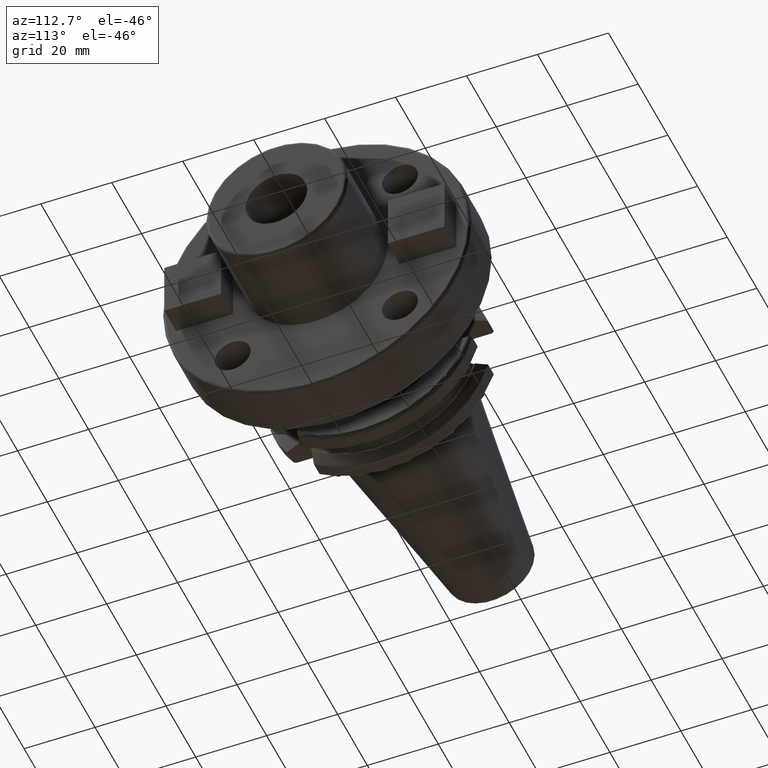
[diagram: clean part render]
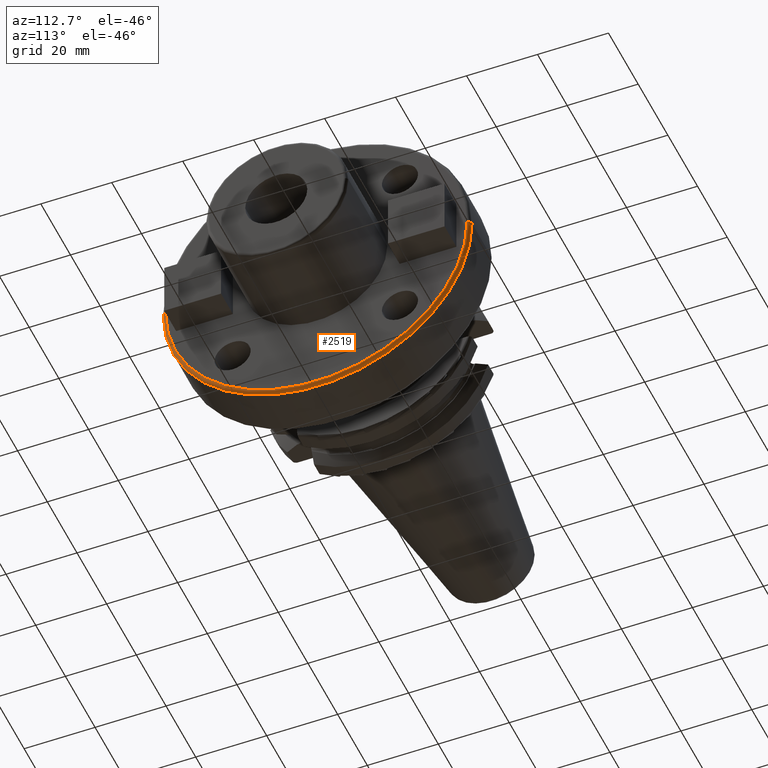
[diagram: same view with one face highlighted and labeled with its STEP entity id]
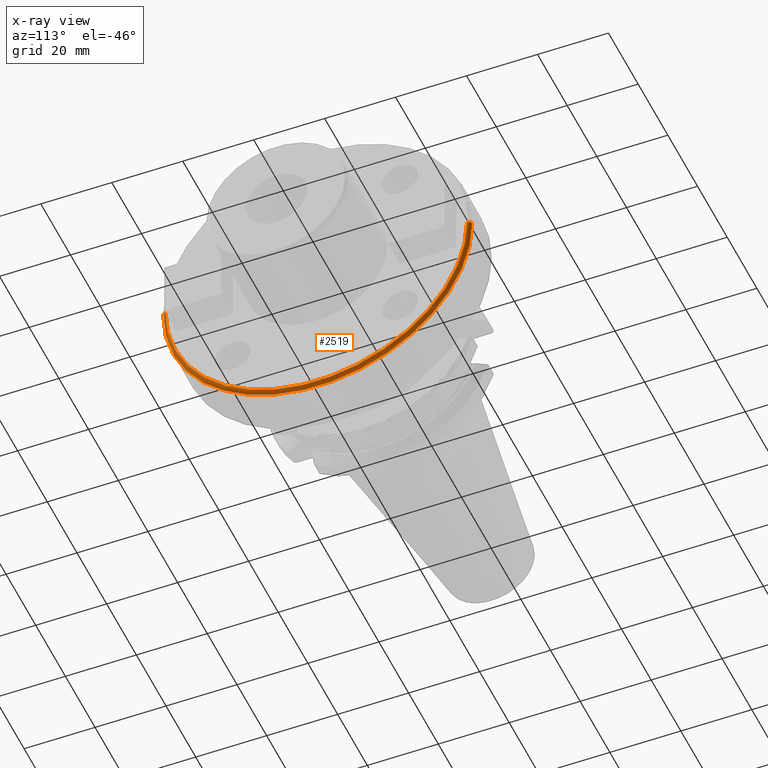
[diagram: x-ray of the same camera — body ghosted, the highlighted face saturated]
A machine part, auxiliary view. The second image highlights one B-rep face of the part: STEP entity #2519.
The next image is the same camera in x-ray: the body ghosted, the highlighted face saturated — about 0% of this face is hidden behind the body in this view.
In plain terms, the highlighted toroidal blend (fillet) surface has major radius 42.5 mm and minor (blend) radius 1 mm.
Its self-contained STEP definition (entity closure, byte-faithful):
#427=CARTESIAN_POINT('',(4.9E1,-4.25E1,-1.046385200709E-14));
#428=DIRECTION('',(0.E0,0.E0,-1.E0));
#429=DIRECTION('',(1.E0,0.E0,0.E0));
#430=AXIS2_PLACEMENT_3D('',#427,#428,#429);
#432=CARTESIAN_POINT('',(4.9E1,4.25E1,0.E0));
#433=DIRECTION('',(0.E0,0.E0,1.E0));
#434=DIRECTION('',(1.E0,0.E0,0.E0));
#435=AXIS2_PLACEMENT_3D('',#432,#433,#434);
#437=CARTESIAN_POINT('',(4.9E1,0.E0,0.E0));
#438=DIRECTION('',(1.E0,0.E0,0.E0));
#439=DIRECTION('',(0.E0,-1.E0,0.E0));
#440=AXIS2_PLACEMENT_3D('',#437,#438,#439);
#465=CARTESIAN_POINT('',(5.E1,0.E0,0.E0));
#466=DIRECTION('',(1.E0,0.E0,0.E0));
#467=DIRECTION('',(0.E0,-1.E0,0.E0));
#468=AXIS2_PLACEMENT_3D('',#465,#466,#467);
#1866=CARTESIAN_POINT('',(4.9E1,-4.35E1,-1.065442715258E-14));
#1867=CARTESIAN_POINT('',(4.9E1,4.35E1,0.E0));
#1868=VERTEX_POINT('',#1866);
#1869=VERTEX_POINT('',#1867);
#1870=CARTESIAN_POINT('',(5.E1,-4.25E1,-1.040949779275E-14));
#1871=CARTESIAN_POINT('',(5.E1,4.25E1,0.E0));
#1872=VERTEX_POINT('',#1870);
#1873=VERTEX_POINT('',#1871);
#2506=CARTESIAN_POINT('',(4.9E1,0.E0,0.E0));
#2507=DIRECTION('',(1.E0,0.E0,0.E0));
#2508=DIRECTION('',(0.E0,9.999942237567E-1,3.398890007437E-3));
#2509=AXIS2_PLACEMENT_3D('',#2506,#2507,#2508);
#2510=TOROIDAL_SURFACE('',#2509,4.25E1,1.E0);
#2512=ORIENTED_EDGE('',*,*,#2511,.F.);
#2513=ORIENTED_EDGE('',*,*,#2501,.F.);
#2515=ORIENTED_EDGE('',*,*,#2514,.T.);
#2516=ORIENTED_EDGE('',*,*,#2497,.T.);
#2517=EDGE_LOOP('',(#2512,#2513,#2515,#2516));
#2518=FACE_OUTER_BOUND('',#2517,.F.);
#2519=ADVANCED_FACE('',(#2518),#2510,.T.);
#431=CIRCLE('',#430,1.E0);
#436=CIRCLE('',#435,1.E0);
#441=CIRCLE('',#440,4.35E1);
#469=CIRCLE('',#468,4.25E1);
#2497=EDGE_CURVE('',#1873,#1869,#436,.T.);
#2501=EDGE_CURVE('',#1872,#1868,#431,.T.);
#2511=EDGE_CURVE('',#1868,#1869,#441,.T.);
#2514=EDGE_CURVE('',#1872,#1873,#469,.T.);